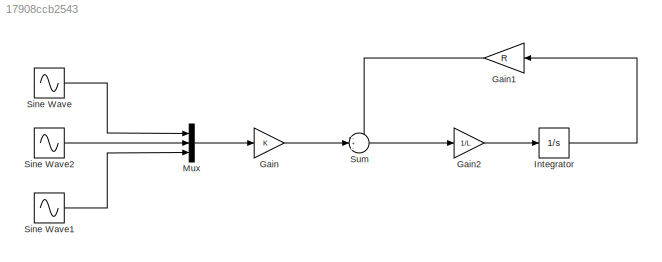
MODEL slx_17908ccb2543
KIND model
CONFIG AbsTol = auto
CONFIG EnableMultiTasking = off
CONFIG FixedStep = auto
CONFIG MaxStep = auto
CONFIG MinStep = auto
CONFIG RelTol = 1e-3
CONFIG SampleTimeConstraint = Unconstrained
CONFIG SolverName = VariableStepAuto
CONFIG StartTime = 0.0
CONFIG StopTime = 10.0
BLOCK [Gain] Gain
BLOCK [Gain] Gain1
  Gain = R
BLOCK [Gain] Gain2
  Gain = 1/L
BLOCK [Integrator] Integrator
BLOCK [Mux] Mux
  DisplayOption = bar
  Inputs = 3
BLOCK [Sin] Sine Wave
  SampleTime = 0
BLOCK [Sin] Sine Wave1
  SampleTime = 0
BLOCK [Sin] Sine Wave2
  SampleTime = 0
BLOCK [Sum] Sum
  Inputs = -+-
LINE Gain1:1 -> Sum:1
LINE Gain2:1 -> Integrator:1
LINE Gain:1 -> Sum:2
LINE Integrator:1 -> Gain1:1
LINE Mux:1 -> Gain:1
LINE Sine Wave1:1 -> Mux:3
LINE Sine Wave2:1 -> Mux:2
LINE Sine Wave:1 -> Mux:1
LINE Sum:1 -> Gain2:1
